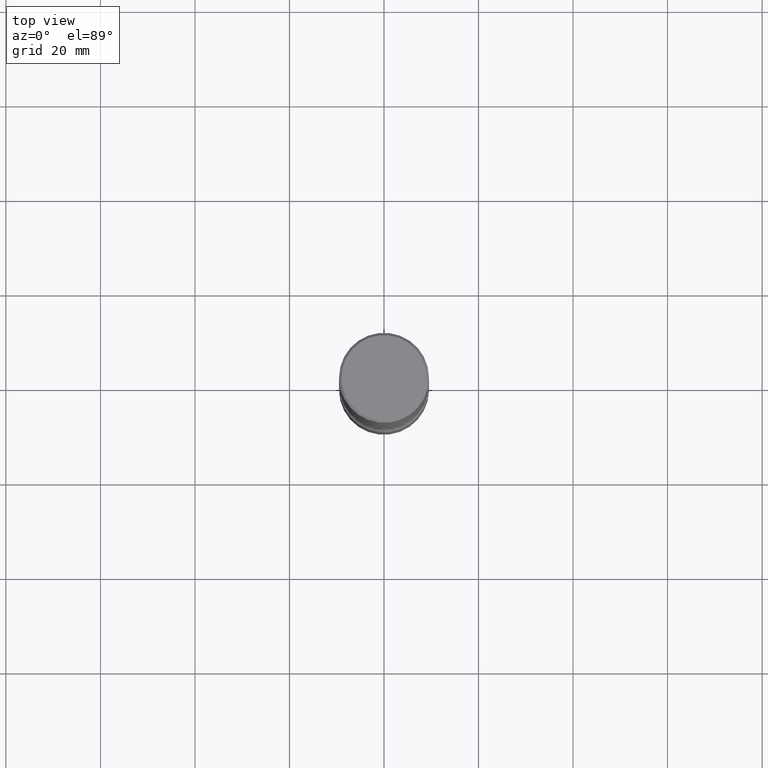
[diagram: clean part render]
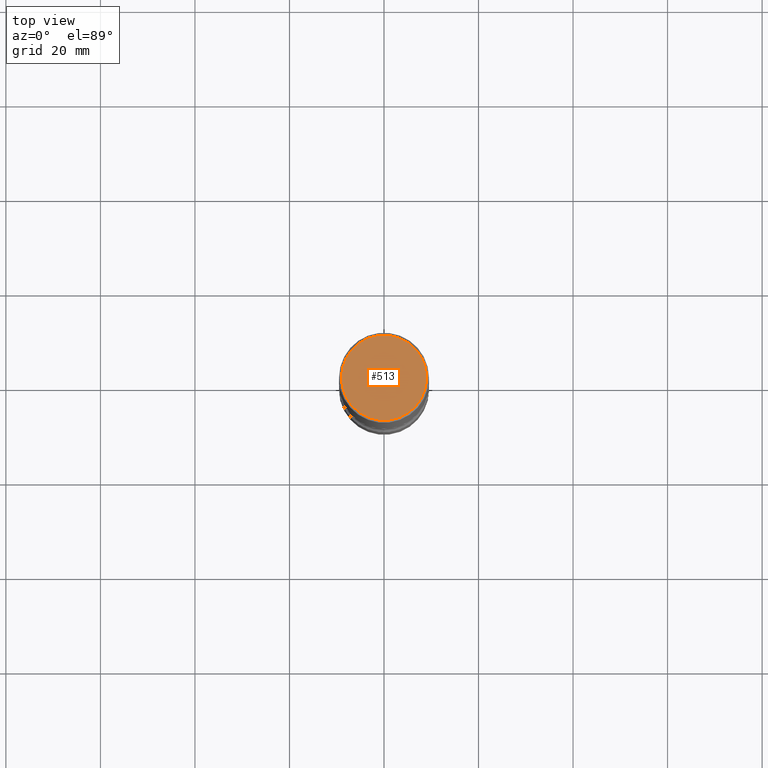
[diagram: same view with one face highlighted and labeled with its STEP entity id]
A machine part, top view. The second image highlights one B-rep face of the part: STEP entity #513.
In plain terms, the highlighted planar face has unit normal (0, -0, -1).
Its self-contained STEP definition (entity closure, byte-faithful):
#5 = AXIS2_PLACEMENT_3D ( 'NONE', #248, #452, #370 ) ;
#24 = AXIS2_PLACEMENT_3D ( 'NONE', #377, #458, #72 ) ;
#72 = DIRECTION ( 'NONE',  ( 1.000000000000000000, -6.982962677686266711E-15, 4.876231632511987623E-29 ) ) ;
#131 = EDGE_LOOP ( 'NONE', ( #167, #559 ) ) ;
#150 = EDGE_CURVE ( 'NONE', #279, #470, #333, .T. ) ;
#154 = EDGE_CURVE ( 'NONE', #470, #279, #518, .T. ) ;
#167 = ORIENTED_EDGE ( 'NONE', *, *, #154, .T. ) ;
#248 = CARTESIAN_POINT ( 'NONE',  ( 2.478951750578624998E-15, 0.3550000000000000377, -1.237341619044266624E-15 ) ) ;
#279 = VERTEX_POINT ( 'NONE', #345 ) ;
#290 = DIRECTION ( 'NONE',  ( 1.000000000000000000, -6.982962677686266711E-15, 4.876231632511987623E-29 ) ) ;
#293 = DIRECTION ( 'NONE',  ( -2.445468806185136597E-29, 3.491481338843145583E-15, 1.000000000000000000 ) ) ;
#333 = CIRCLE ( 'NONE', #354, 0.3550000000000000377 ) ;
#345 = CARTESIAN_POINT ( 'NONE',  ( 0.3550000000000000377, -2.538996582575041048E-15, 4.268512490117958041E-18 ) ) ;
#354 = AXIS2_PLACEMENT_3D ( 'NONE', #418, #293, #290 ) ;
#370 = DIRECTION ( 'NONE',  ( -1.000000000000000000, 6.982962677686265922E-15, -4.876176775795935793E-29 ) ) ;
#375 = PLANE ( 'NONE',  #5 ) ;
#377 = CARTESIAN_POINT ( 'NONE',  ( -1.043851414335219820E-46, 1.490343170380447200E-32, 4.268512490100411279E-18 ) ) ;
#410 = FACE_OUTER_BOUND ( 'NONE', #131, .T. ) ;
#418 = CARTESIAN_POINT ( 'NONE',  ( -1.043851414335219820E-46, 1.490343170380447200E-32, 4.268512490100411279E-18 ) ) ;
#447 = CARTESIAN_POINT ( 'NONE',  ( -0.3550000000000000377, 2.513866563967055858E-15, 4.268512490082953109E-18 ) ) ;
#452 = DIRECTION ( 'NONE',  ( 2.438088387897960049E-29, -3.491481338843145188E-15, -1.000000000000000000 ) ) ;
#458 = DIRECTION ( 'NONE',  ( -2.445468806185136597E-29, 3.491481338843145583E-15, 1.000000000000000000 ) ) ;
#470 = VERTEX_POINT ( 'NONE', #447 ) ;
#513 = ADVANCED_FACE ( 'NONE', ( #410 ), #375, .F. ) ;
#518 = CIRCLE ( 'NONE', #24, 0.3550000000000000377 ) ;
#559 = ORIENTED_EDGE ( 'NONE', *, *, #150, .T. ) ;